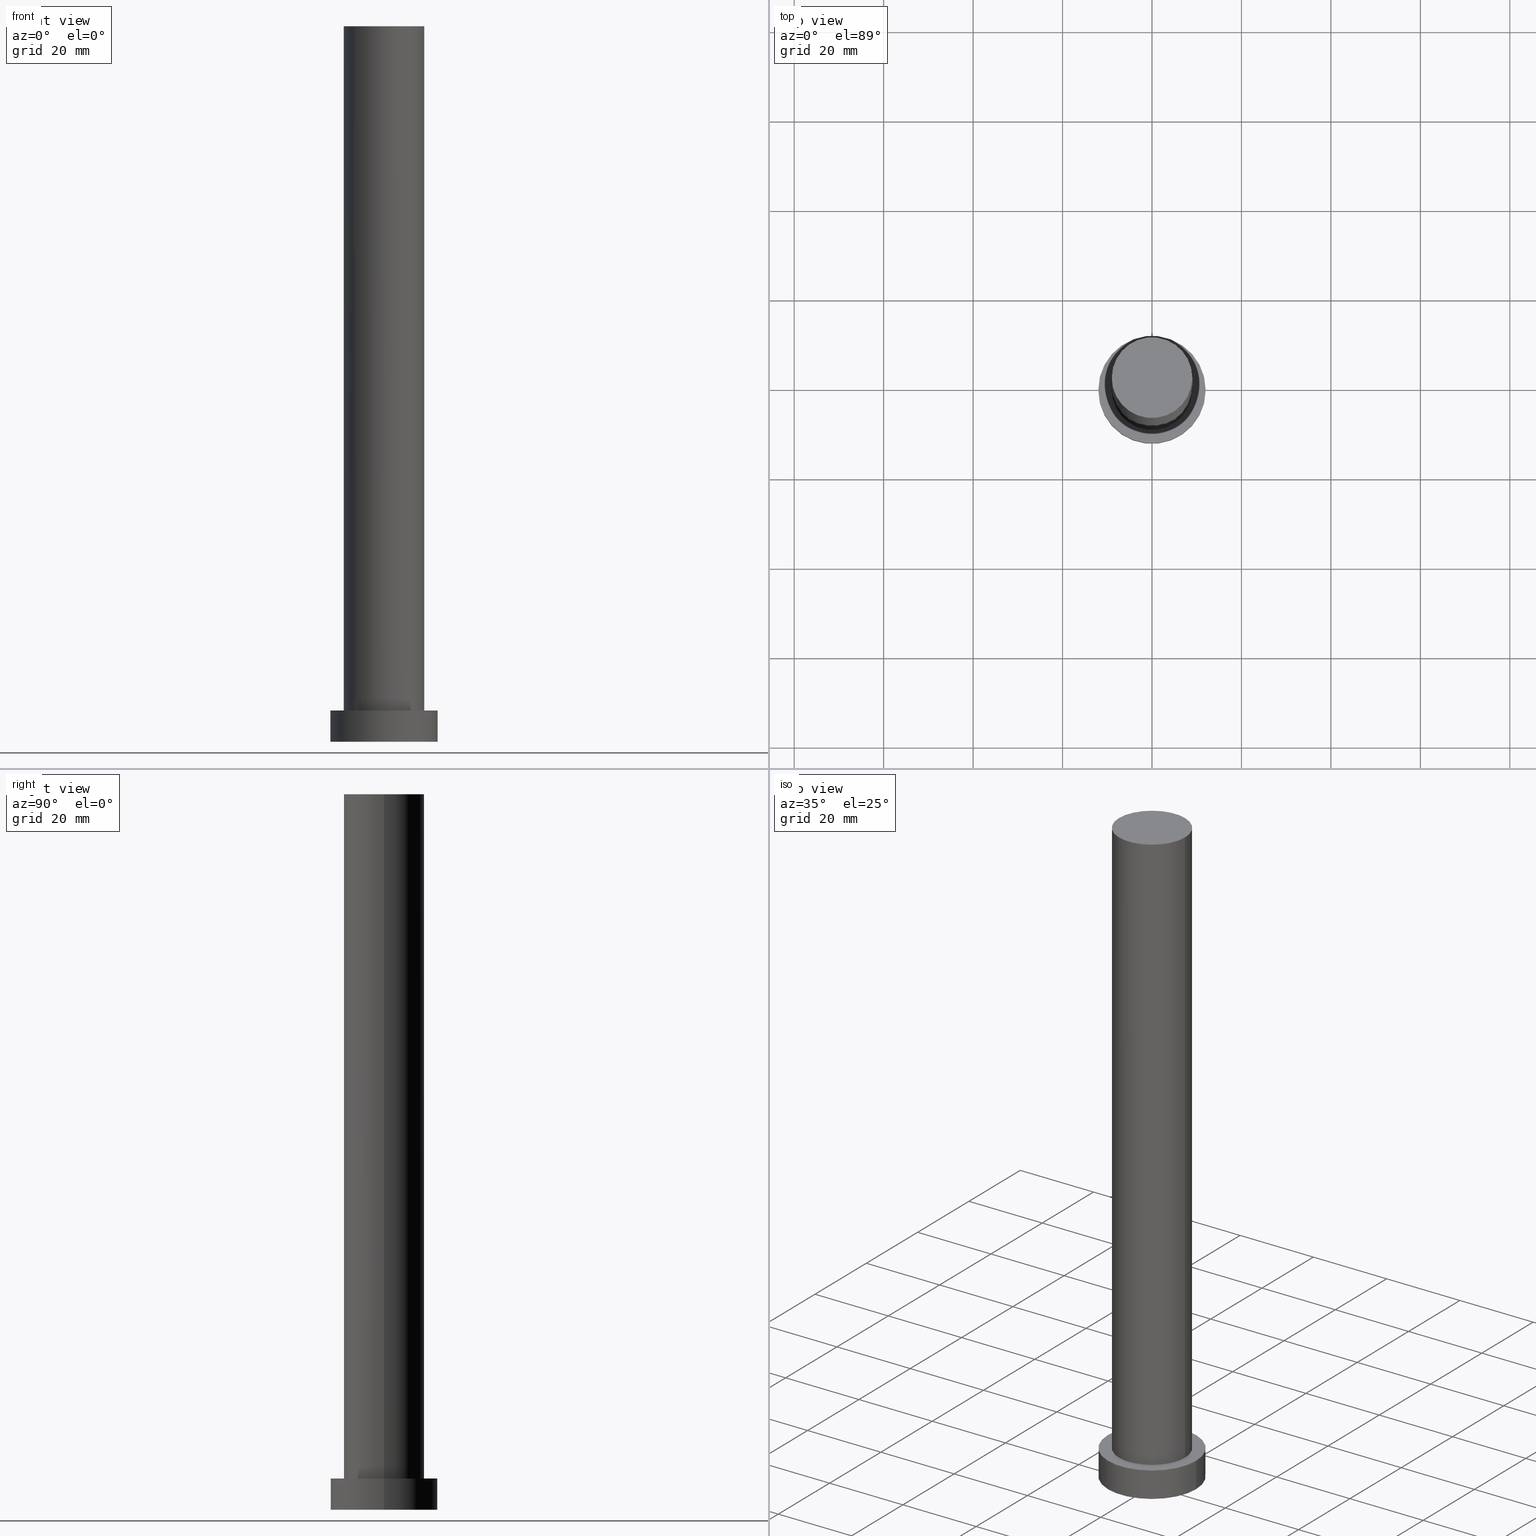
[diagram: canonical four-view strip — front | top / right | iso, engineering-drawing reading convention]
A machine part, canonical four-view strip (front | top / right | iso — engineering-drawing reading convention). The complete STEP part file that produces these views, byte-faithful:
ISO-10303-21;
HEADER;
FILE_DESCRIPTION (( 'STEP AP203' ),
    '1' );
FILE_NAME ('cbfb.STEP',
    '2023-02-13T07:50:59',
    ( '' ),
    ( '' ),
    'SwSTEP 2.0',
    'SolidWorks 2019',
    '' );
FILE_SCHEMA (( 'CONFIG_CONTROL_DESIGN' ));
ENDSEC;

DATA;
#1 = CARTESIAN_POINT ( 'NONE',  ( 9.000000000000000000, 1.102182119232617714E-15, 160.0000000000000000 ) ) ;
#2 = EDGE_CURVE ( 'NONE', #240, #110, #241, .T. ) ;
#3 = UNCERTAINTY_MEASURE_WITH_UNIT (LENGTH_MEASURE( 1.000000000000000082E-05 ), #155, 'distance_accuracy_value', 'NONE');
#4 = VECTOR ( 'NONE', #135, 1000.000000000000000 ) ;
#5 = COORDINATED_UNIVERSAL_TIME_OFFSET ( 1, 0, .AHEAD. ) ;
#6 = PERSON_AND_ORGANIZATION ( #73, #172 ) ;
#7 = AXIS2_PLACEMENT_3D ( 'NONE', #226, #202, #95 ) ;
#8 = DIRECTION ( 'NONE',  ( 0.000000000000000000, 0.000000000000000000, 1.000000000000000000 ) ) ;
#9 = ADVANCED_FACE ( 'NONE', ( #47 ), #129, .T. ) ;
#10 = PLANE ( 'NONE',  #223 ) ;
#11 = LINE ( 'NONE', #14, #152 ) ;
#12 = EDGE_CURVE ( 'NONE', #153, #242, #60, .T. ) ;
#13 = DIRECTION ( 'NONE',  ( 0.000000000000000000, 0.000000000000000000, 1.000000000000000000 ) ) ;
#14 = CARTESIAN_POINT ( 'NONE',  ( 12.00000000000000178, 1.469576158976824144E-15, 7.000000000000000000 ) ) ;
#15 = AXIS2_PLACEMENT_3D ( 'NONE', #114, #97, #250 ) ;
#16 =( NAMED_UNIT ( * ) PLANE_ANGLE_UNIT ( ) SI_UNIT ( $, .RADIAN. ) );
#17 = PRODUCT_DEFINITION_SHAPE ( 'NONE', 'NONE',  #179 ) ;
#18 = EDGE_CURVE ( 'NONE', #141, #242, #11, .T. ) ;
#19 = DIRECTION ( 'NONE',  ( 1.000000000000000000, 0.000000000000000000, 0.000000000000000000 ) ) ;
#20 = AXIS2_PLACEMENT_3D ( 'NONE', #96, #249, #79 ) ;
#21 = ORIENTED_EDGE ( 'NONE', *, *, #124, .F. ) ;
#22 = CALENDAR_DATE ( 2023, 13, 2 ) ;
#23 = CC_DESIGN_PERSON_AND_ORGANIZATION_ASSIGNMENT ( #198, #119, ( #75 ) ) ;
#24 = APPROVAL_PERSON_ORGANIZATION ( #6, #40, #90 ) ;
#25 = PERSON_AND_ORGANIZATION ( #73, #172 ) ;
#26 = ORIENTED_EDGE ( 'NONE', *, *, #183, .F. ) ;
#27 = AXIS2_PLACEMENT_3D ( 'NONE', #237, #212, #19 ) ;
#28 = ADVANCED_FACE ( 'NONE', ( #204 ), #10, .T. ) ;
#29 = AXIS2_PLACEMENT_3D ( 'NONE', #32, #92, #228 ) ;
#30 = DIRECTION ( 'NONE',  ( 0.000000000000000000, 0.000000000000000000, 1.000000000000000000 ) ) ;
#31 = CC_DESIGN_PERSON_AND_ORGANIZATION_ASSIGNMENT ( #25, #140, ( #65 ) ) ;
#32 = CARTESIAN_POINT ( 'NONE',  ( 0.000000000000000000, 0.000000000000000000, 160.0000000000000000 ) ) ;
#33 = FACE_OUTER_BOUND ( 'NONE', #161, .T. ) ;
#34 = CC_DESIGN_PERSON_AND_ORGANIZATION_ASSIGNMENT ( #42, #125, ( #179 ) ) ;
#35 = FACE_OUTER_BOUND ( 'NONE', #146, .T. ) ;
#36 = ORIENTED_EDGE ( 'NONE', *, *, #62, .T. ) ;
#37 = CARTESIAN_POINT ( 'NONE',  ( 0.000000000000000000, 0.000000000000000000, 7.000000000000000000 ) ) ;
#38 = ADVANCED_FACE ( 'NONE', ( #33 ), #151, .T. ) ;
#39 = LINE ( 'NONE', #54, #205 ) ;
#40 = APPROVAL ( #61, 'NEUR�EN�' ) ;
#41 = LINE ( 'NONE', #1, #4 ) ;
#42 = PERSON_AND_ORGANIZATION ( #73, #172 ) ;
#43 = CC_DESIGN_PERSON_AND_ORGANIZATION_ASSIGNMENT ( #201, #182, ( #65 ) ) ;
#44 = APPROVAL_DATE_TIME ( #122, #57 ) ;
#45 = ORIENTED_EDGE ( 'NONE', *, *, #218, .T. ) ;
#46 = APPLICATION_CONTEXT ( 'configuration controlled 3d designs of mechanical parts and assemblies' ) ;
#47 = FACE_OUTER_BOUND ( 'NONE', #209, .T. ) ;
#48 = ORIENTED_EDGE ( 'NONE', *, *, #53, .F. ) ;
#49 = ORIENTED_EDGE ( 'NONE', *, *, #143, .F. ) ;
#50 = DIRECTION ( 'NONE',  ( 0.000000000000000000, 0.000000000000000000, 1.000000000000000000 ) ) ;
#51 = AXIS2_PLACEMENT_3D ( 'NONE', #55, #103, #84 ) ;
#52 = DIRECTION ( 'NONE',  ( -0.000000000000000000, -0.000000000000000000, -1.000000000000000000 ) ) ;
#53 = EDGE_CURVE ( 'NONE', #203, #141, #186, .T. ) ;
#54 = CARTESIAN_POINT ( 'NONE',  ( -12.00000000000000178, 0.000000000000000000, 7.000000000000000000 ) ) ;
#55 = CARTESIAN_POINT ( 'NONE',  ( 0.000000000000000000, 0.000000000000000000, 7.000000000000000000 ) ) ;
#56 = DIRECTION ( 'NONE',  ( -0.000000000000000000, -0.000000000000000000, -1.000000000000000000 ) ) ;
#57 = APPROVAL ( #168, 'NEUR�EN�' ) ;
#58 = CARTESIAN_POINT ( 'NONE',  ( -9.000000000000000000, 0.000000000000000000, 160.0000000000000000 ) ) ;
#59 = CARTESIAN_POINT ( 'NONE',  ( 0.000000000000000000, 0.000000000000000000, 7.000000000000000000 ) ) ;
#60 = CIRCLE ( 'NONE', #118, 12.00000000000000178 ) ;
#61 = APPROVAL_STATUS ( 'not_yet_approved' ) ;
#62 = EDGE_CURVE ( 'NONE', #166, #245, #216, .T. ) ;
#63 = APPROVAL_STATUS ( 'not_yet_approved' ) ;
#64 = ORIENTED_EDGE ( 'NONE', *, *, #218, .F. ) ;
#65 = PRODUCT_DEFINITION_FORMATION_WITH_SPECIFIED_SOURCE ( 'LIBOVOLN�', '', #80, .NOT_KNOWN. ) ;
#66 = CALENDAR_DATE ( 2023, 13, 2 ) ;
#67 = ORIENTED_EDGE ( 'NONE', *, *, #253, .F. ) ;
#68 = ADVANCED_FACE ( 'NONE', ( #176 ), #76, .T. ) ;
#69 = CALENDAR_DATE ( 2023, 13, 2 ) ;
#70 = EDGE_LOOP ( 'NONE', ( #222, #132 ) ) ;
#71 = CC_DESIGN_DATE_AND_TIME_ASSIGNMENT ( #238, #145, ( #75 ) ) ;
#72 = ORIENTED_EDGE ( 'NONE', *, *, #12, .T. ) ;
#73 = PERSON ( 'NEUR�EN�', 'NEUR�EN�', 'NEUR�EN�', ('NEUR�EN�'), ('NEUR�EN�'), ('NEUR�EN�') ) ;
#74 = AXIS2_PLACEMENT_3D ( 'NONE', #37, #133, #192 ) ;
#75 = SECURITY_CLASSIFICATION ( '', '', #181 ) ;
#76 = CYLINDRICAL_SURFACE ( 'NONE', #20, 9.000000000000000000 ) ;
#77 = EDGE_CURVE ( 'NONE', #110, #240, #167, .T. ) ;
#78 = ORIENTED_EDGE ( 'NONE', *, *, #2, .F. ) ;
#79 = DIRECTION ( 'NONE',  ( -1.000000000000000000, 0.000000000000000000, 0.000000000000000000 ) ) ;
#80 = PRODUCT ( 'cbfb', 'cbfb', '', ( #197 ) ) ;
#81 = DIRECTION ( 'NONE',  ( 0.000000000000000000, 0.000000000000000000, 1.000000000000000000 ) ) ;
#82 = CC_DESIGN_APPROVAL ( #40, ( #75 ) ) ;
#83 = AXIS2_PLACEMENT_3D ( 'NONE', #247, #30, #113 ) ;
#84 = DIRECTION ( 'NONE',  ( -1.000000000000000000, 0.000000000000000000, 0.000000000000000000 ) ) ;
#85 = APPLICATION_PROTOCOL_DEFINITION ( 'international standard', 'config_control_design', 1994, #217 ) ;
#86 = VECTOR ( 'NONE', #56, 1000.000000000000000 ) ;
#87 = DIRECTION ( 'NONE',  ( 0.000000000000000000, 0.000000000000000000, 1.000000000000000000 ) ) ;
#88 = ADVANCED_FACE ( 'NONE', ( #35 ), #177, .F. ) ;
#89 = COORDINATED_UNIVERSAL_TIME_OFFSET ( 1, 0, .AHEAD. ) ;
#90 = APPROVAL_ROLE ( '' ) ;
#91 = COORDINATED_UNIVERSAL_TIME_OFFSET ( 1, 0, .AHEAD. ) ;
#92 = DIRECTION ( 'NONE',  ( 0.000000000000000000, 0.000000000000000000, 1.000000000000000000 ) ) ;
#93 = CARTESIAN_POINT ( 'NONE',  ( 0.000000000000000000, 0.000000000000000000, 7.000000000000000000 ) ) ;
#94 = APPROVAL_PERSON_ORGANIZATION ( #244, #126, #239 ) ;
#95 = DIRECTION ( 'NONE',  ( -1.000000000000000000, 0.000000000000000000, 0.000000000000000000 ) ) ;
#96 = CARTESIAN_POINT ( 'NONE',  ( 0.000000000000000000, 0.000000000000000000, 160.0000000000000000 ) ) ;
#97 = DIRECTION ( 'NONE',  ( 0.000000000000000000, 0.000000000000000000, 1.000000000000000000 ) ) ;
#98 = CC_DESIGN_PERSON_AND_ORGANIZATION_ASSIGNMENT ( #180, #224, ( #80 ) ) ;
#99 = FACE_OUTER_BOUND ( 'NONE', #160, .T. ) ;
#100 = PRODUCT_RELATED_PRODUCT_CATEGORY ( 'detail', '', ( #80 ) ) ;
#101 =( NAMED_UNIT ( * ) SI_UNIT ( $, .STERADIAN. ) SOLID_ANGLE_UNIT ( ) );
#102 = DIRECTION ( 'NONE',  ( 0.000000000000000000, 0.000000000000000000, 1.000000000000000000 ) ) ;
#103 = DIRECTION ( 'NONE',  ( -0.000000000000000000, -0.000000000000000000, -1.000000000000000000 ) ) ;
#104 = CLOSED_SHELL ( 'NONE', ( #68, #231, #38, #213, #88, #9, #28 ) ) ;
#105 = LOCAL_TIME ( 8, 50, 59.00000000000000000, #108 ) ;
#106 = DATE_TIME_ROLE ( 'creation_date' ) ;
#107 = PERSON_AND_ORGANIZATION ( #73, #172 ) ;
#108 = COORDINATED_UNIVERSAL_TIME_OFFSET ( 1, 0, .AHEAD. ) ;
#109 = ORIENTED_EDGE ( 'NONE', *, *, #175, .T. ) ;
#110 = VERTEX_POINT ( 'NONE', #158 ) ;
#111 = ORIENTED_EDGE ( 'NONE', *, *, #53, .T. ) ;
#112 = CIRCLE ( 'NONE', #200, 12.00000000000000178 ) ;
#113 = DIRECTION ( 'NONE',  ( 1.000000000000000000, 0.000000000000000000, 0.000000000000000000 ) ) ;
#114 = CARTESIAN_POINT ( 'NONE',  ( 0.000000000000000000, 0.000000000000000000, 0.000000000000000000 ) ) ;
#115 = ORIENTED_EDGE ( 'NONE', *, *, #143, .T. ) ;
#116 = PLANE ( 'NONE',  #74 ) ;
#117 = CARTESIAN_POINT ( 'NONE',  ( -9.000000000000000000, 0.000000000000000000, 7.000000000000000000 ) ) ;
#118 = AXIS2_PLACEMENT_3D ( 'NONE', #248, #8, #131 ) ;
#119 = PERSON_AND_ORGANIZATION_ROLE ( 'classification_officer' ) ;
#120 = DESIGN_CONTEXT ( 'detailed design', #46, 'design' ) ;
#121 = APPROVAL_DATE_TIME ( #219, #126 ) ;
#122 = DATE_AND_TIME ( #220, #105 ) ;
#123 = APPLICATION_PROTOCOL_DEFINITION ( 'international standard', 'config_control_design', 1994, #46 ) ;
#124 = EDGE_CURVE ( 'NONE', #141, #203, #157, .T. ) ;
#125 = PERSON_AND_ORGANIZATION_ROLE ( 'creator' ) ;
#126 = APPROVAL ( #63, 'NEUR�EN�' ) ;
#127 = ORIENTED_EDGE ( 'NONE', *, *, #12, .F. ) ;
#128 = ORIENTED_EDGE ( 'NONE', *, *, #18, .F. ) ;
#129 = CYLINDRICAL_SURFACE ( 'NONE', #243, 9.000000000000000000 ) ;
#130 = AXIS2_PLACEMENT_3D ( 'NONE', #93, #13, #170 ) ;
#131 = DIRECTION ( 'NONE',  ( 1.000000000000000000, 0.000000000000000000, 0.000000000000000000 ) ) ;
#132 = ORIENTED_EDGE ( 'NONE', *, *, #62, .F. ) ;
#133 = DIRECTION ( 'NONE',  ( 0.000000000000000000, 0.000000000000000000, 1.000000000000000000 ) ) ;
#134 = CC_DESIGN_APPROVAL ( #57, ( #65 ) ) ;
#135 = DIRECTION ( 'NONE',  ( -0.000000000000000000, -0.000000000000000000, -1.000000000000000000 ) ) ;
#136 = LOCAL_TIME ( 8, 50, 59.00000000000000000, #5 ) ;
#137 = FACE_BOUND ( 'NONE', #70, .T. ) ;
#138 = DIRECTION ( 'NONE',  ( 1.000000000000000000, 0.000000000000000000, 0.000000000000000000 ) ) ;
#139 = AXIS2_PLACEMENT_3D ( 'NONE', #230, #50, #208 ) ;
#140 = PERSON_AND_ORGANIZATION_ROLE ( 'design_supplier' ) ;
#141 = VERTEX_POINT ( 'NONE', #162 ) ;
#142 = APPROVAL_ROLE ( '' ) ;
#143 = EDGE_CURVE ( 'NONE', #240, #245, #251, .T. ) ;
#144 = CIRCLE ( 'NONE', #184, 9.000000000000000000 ) ;
#145 = DATE_TIME_ROLE ( 'classification_date' ) ;
#146 = EDGE_LOOP ( 'NONE', ( #127, #64 ) ) ;
#147 = CARTESIAN_POINT ( 'NONE',  ( 0.000000000000000000, 0.000000000000000000, 160.0000000000000000 ) ) ;
#148 = SHAPE_DEFINITION_REPRESENTATION ( #17, #174 ) ;
#149 = ORIENTED_EDGE ( 'NONE', *, *, #253, .T. ) ;
#150 = ORIENTED_EDGE ( 'NONE', *, *, #124, .T. ) ;
#151 = CYLINDRICAL_SURFACE ( 'NONE', #7, 12.00000000000000178 ) ;
#152 = VECTOR ( 'NONE', #191, 1000.000000000000000 ) ;
#153 = VERTEX_POINT ( 'NONE', #235 ) ;
#154 = FACE_OUTER_BOUND ( 'NONE', #225, .T. ) ;
#155 =( LENGTH_UNIT ( ) NAMED_UNIT ( * ) SI_UNIT ( .MILLI., .METRE. ) );
#156 = MANIFOLD_SOLID_BREP ( 'P�idat vysunut�m3', #104 ) ;
#157 = CIRCLE ( 'NONE', #27, 12.00000000000000178 ) ;
#158 = CARTESIAN_POINT ( 'NONE',  ( 9.000000000000000000, 1.102182119232617714E-15, 160.0000000000000000 ) ) ;
#159 = CC_DESIGN_APPROVAL ( #126, ( #179 ) ) ;
#160 = EDGE_LOOP ( 'NONE', ( #111, #150 ) ) ;
#161 = EDGE_LOOP ( 'NONE', ( #128, #48, #164, #72 ) ) ;
#162 = CARTESIAN_POINT ( 'NONE',  ( 12.00000000000000178, 1.469576158976824144E-15, 7.000000000000000000 ) ) ;
#163 = CALENDAR_DATE ( 2023, 13, 2 ) ;
#164 = ORIENTED_EDGE ( 'NONE', *, *, #183, .T. ) ;
#165 = COORDINATED_UNIVERSAL_TIME_OFFSET ( 1, 0, .AHEAD. ) ;
#166 = VERTEX_POINT ( 'NONE', #252 ) ;
#167 = CIRCLE ( 'NONE', #139, 9.000000000000000000 ) ;
#168 = APPROVAL_STATUS ( 'not_yet_approved' ) ;
#169 = ORIENTED_EDGE ( 'NONE', *, *, #77, .F. ) ;
#170 = DIRECTION ( 'NONE',  ( 1.000000000000000000, 0.000000000000000000, 0.000000000000000000 ) ) ;
#171 = LOCAL_TIME ( 8, 50, 59.00000000000000000, #91 ) ;
#172 = ORGANIZATION ( 'NEUR�EN�', 'NEUR�EN�', '' ) ;
#173 = DIRECTION ( 'NONE',  ( 1.000000000000000000, 0.000000000000000000, -0.000000000000000000 ) ) ;
#174 = ADVANCED_BREP_SHAPE_REPRESENTATION ( 'cbfb', ( #156, #185 ), #227 ) ;
#175 = EDGE_CURVE ( 'NONE', #245, #166, #144, .T. ) ;
#176 = FACE_OUTER_BOUND ( 'NONE', #236, .T. ) ;
#177 = PLANE ( 'NONE',  #15 ) ;
#178 = DIRECTION ( 'NONE',  ( 1.000000000000000000, 0.000000000000000000, 0.000000000000000000 ) ) ;
#179 = PRODUCT_DEFINITION ( 'NEZN�M�', '', #65, #120 ) ;
#180 = PERSON_AND_ORGANIZATION ( #73, #172 ) ;
#181 = SECURITY_CLASSIFICATION_LEVEL ( 'unclassified' ) ;
#182 = PERSON_AND_ORGANIZATION_ROLE ( 'creator' ) ;
#183 = EDGE_CURVE ( 'NONE', #203, #153, #39, .T. ) ;
#184 = AXIS2_PLACEMENT_3D ( 'NONE', #59, #214, #138 ) ;
#185 = AXIS2_PLACEMENT_3D ( 'NONE', #195, #87, #254 ) ;
#186 = CIRCLE ( 'NONE', #83, 12.00000000000000178 ) ;
#187 = ORIENTED_EDGE ( 'NONE', *, *, #18, .T. ) ;
#188 = DIRECTION ( 'NONE',  ( -1.000000000000000000, 0.000000000000000000, 0.000000000000000000 ) ) ;
#189 = EDGE_LOOP ( 'NONE', ( #229, #255 ) ) ;
#190 = DATE_AND_TIME ( #69, #171 ) ;
#191 = DIRECTION ( 'NONE',  ( -0.000000000000000000, -0.000000000000000000, -1.000000000000000000 ) ) ;
#192 = DIRECTION ( 'NONE',  ( 1.000000000000000000, 0.000000000000000000, -0.000000000000000000 ) ) ;
#193 = CC_DESIGN_SECURITY_CLASSIFICATION ( #75, ( #65 ) ) ;
#194 = CARTESIAN_POINT ( 'NONE',  ( 12.00000000000000178, 1.469576158976824144E-15, 0.000000000000000000 ) ) ;
#195 = CARTESIAN_POINT ( 'NONE',  ( 0.000000000000000000, 0.000000000000000000, 0.000000000000000000 ) ) ;
#196 = CARTESIAN_POINT ( 'NONE',  ( 0.000000000000000000, 0.000000000000000000, 0.000000000000000000 ) ) ;
#197 = MECHANICAL_CONTEXT ( 'NONE', #217, 'mechanical' ) ;
#198 = PERSON_AND_ORGANIZATION ( #73, #172 ) ;
#199 = DATE_AND_TIME ( #66, #221 ) ;
#200 = AXIS2_PLACEMENT_3D ( 'NONE', #196, #102, #178 ) ;
#201 = PERSON_AND_ORGANIZATION ( #73, #172 ) ;
#202 = DIRECTION ( 'NONE',  ( -0.000000000000000000, -0.000000000000000000, -1.000000000000000000 ) ) ;
#203 = VERTEX_POINT ( 'NONE', #234 ) ;
#204 = FACE_OUTER_BOUND ( 'NONE', #189, .T. ) ;
#205 = VECTOR ( 'NONE', #211, 1000.000000000000000 ) ;
#206 = APPROVAL_PERSON_ORGANIZATION ( #107, #57, #142 ) ;
#207 = APPROVAL_DATE_TIME ( #190, #40 ) ;
#208 = DIRECTION ( 'NONE',  ( 1.000000000000000000, 0.000000000000000000, 0.000000000000000000 ) ) ;
#209 = EDGE_LOOP ( 'NONE', ( #67, #78, #115, #109 ) ) ;
#210 = CYLINDRICAL_SURFACE ( 'NONE', #51, 12.00000000000000178 ) ;
#211 = DIRECTION ( 'NONE',  ( -0.000000000000000000, -0.000000000000000000, -1.000000000000000000 ) ) ;
#212 = DIRECTION ( 'NONE',  ( 0.000000000000000000, 0.000000000000000000, 1.000000000000000000 ) ) ;
#213 = ADVANCED_FACE ( 'NONE', ( #137, #99 ), #116, .T. ) ;
#214 = DIRECTION ( 'NONE',  ( 0.000000000000000000, 0.000000000000000000, 1.000000000000000000 ) ) ;
#215 = CARTESIAN_POINT ( 'NONE',  ( -9.000000000000000000, 0.000000000000000000, 160.0000000000000000 ) ) ;
#216 = CIRCLE ( 'NONE', #130, 9.000000000000000000 ) ;
#217 = APPLICATION_CONTEXT ( 'configuration controlled 3d designs of mechanical parts and assemblies' ) ;
#218 = EDGE_CURVE ( 'NONE', #242, #153, #112, .T. ) ;
#219 = DATE_AND_TIME ( #163, #233 ) ;
#220 = CALENDAR_DATE ( 2023, 13, 2 ) ;
#221 = LOCAL_TIME ( 8, 50, 59.00000000000000000, #165 ) ;
#222 = ORIENTED_EDGE ( 'NONE', *, *, #175, .F. ) ;
#223 = AXIS2_PLACEMENT_3D ( 'NONE', #147, #81, #173 ) ;
#224 = PERSON_AND_ORGANIZATION_ROLE ( 'design_owner' ) ;
#225 = EDGE_LOOP ( 'NONE', ( #21, #187, #45, #26 ) ) ;
#226 = CARTESIAN_POINT ( 'NONE',  ( 0.000000000000000000, 0.000000000000000000, 7.000000000000000000 ) ) ;
#227 =( GEOMETRIC_REPRESENTATION_CONTEXT ( 3 ) GLOBAL_UNCERTAINTY_ASSIGNED_CONTEXT ( ( #3 ) ) GLOBAL_UNIT_ASSIGNED_CONTEXT ( ( #155, #16, #101 ) ) REPRESENTATION_CONTEXT ( 'NONE', 'WORKASPACE' ) );
#228 = DIRECTION ( 'NONE',  ( 1.000000000000000000, 0.000000000000000000, 0.000000000000000000 ) ) ;
#229 = ORIENTED_EDGE ( 'NONE', *, *, #2, .T. ) ;
#230 = CARTESIAN_POINT ( 'NONE',  ( 0.000000000000000000, 0.000000000000000000, 160.0000000000000000 ) ) ;
#231 = ADVANCED_FACE ( 'NONE', ( #154 ), #210, .T. ) ;
#232 = CARTESIAN_POINT ( 'NONE',  ( 0.000000000000000000, 0.000000000000000000, 160.0000000000000000 ) ) ;
#233 = LOCAL_TIME ( 8, 50, 59.00000000000000000, #89 ) ;
#234 = CARTESIAN_POINT ( 'NONE',  ( -12.00000000000000178, 0.000000000000000000, 7.000000000000000000 ) ) ;
#235 = CARTESIAN_POINT ( 'NONE',  ( -12.00000000000000178, 0.000000000000000000, 0.000000000000000000 ) ) ;
#236 = EDGE_LOOP ( 'NONE', ( #169, #149, #36, #49 ) ) ;
#237 = CARTESIAN_POINT ( 'NONE',  ( 0.000000000000000000, 0.000000000000000000, 7.000000000000000000 ) ) ;
#238 = DATE_AND_TIME ( #22, #136 ) ;
#239 = APPROVAL_ROLE ( '' ) ;
#240 = VERTEX_POINT ( 'NONE', #215 ) ;
#241 = CIRCLE ( 'NONE', #29, 9.000000000000000000 ) ;
#242 = VERTEX_POINT ( 'NONE', #194 ) ;
#243 = AXIS2_PLACEMENT_3D ( 'NONE', #232, #52, #188 ) ;
#244 = PERSON_AND_ORGANIZATION ( #73, #172 ) ;
#245 = VERTEX_POINT ( 'NONE', #117 ) ;
#246 = CC_DESIGN_DATE_AND_TIME_ASSIGNMENT ( #199, #106, ( #179 ) ) ;
#247 = CARTESIAN_POINT ( 'NONE',  ( 0.000000000000000000, 0.000000000000000000, 7.000000000000000000 ) ) ;
#248 = CARTESIAN_POINT ( 'NONE',  ( 0.000000000000000000, 0.000000000000000000, 0.000000000000000000 ) ) ;
#249 = DIRECTION ( 'NONE',  ( -0.000000000000000000, -0.000000000000000000, -1.000000000000000000 ) ) ;
#250 = DIRECTION ( 'NONE',  ( 1.000000000000000000, 0.000000000000000000, -0.000000000000000000 ) ) ;
#251 = LINE ( 'NONE', #58, #86 ) ;
#252 = CARTESIAN_POINT ( 'NONE',  ( 9.000000000000000000, 1.102182119232617714E-15, 7.000000000000000000 ) ) ;
#253 = EDGE_CURVE ( 'NONE', #110, #166, #41, .T. ) ;
#254 = DIRECTION ( 'NONE',  ( 1.000000000000000000, 0.000000000000000000, 0.000000000000000000 ) ) ;
#255 = ORIENTED_EDGE ( 'NONE', *, *, #77, .T. ) ;
ENDSEC;
END-ISO-10303-21;
